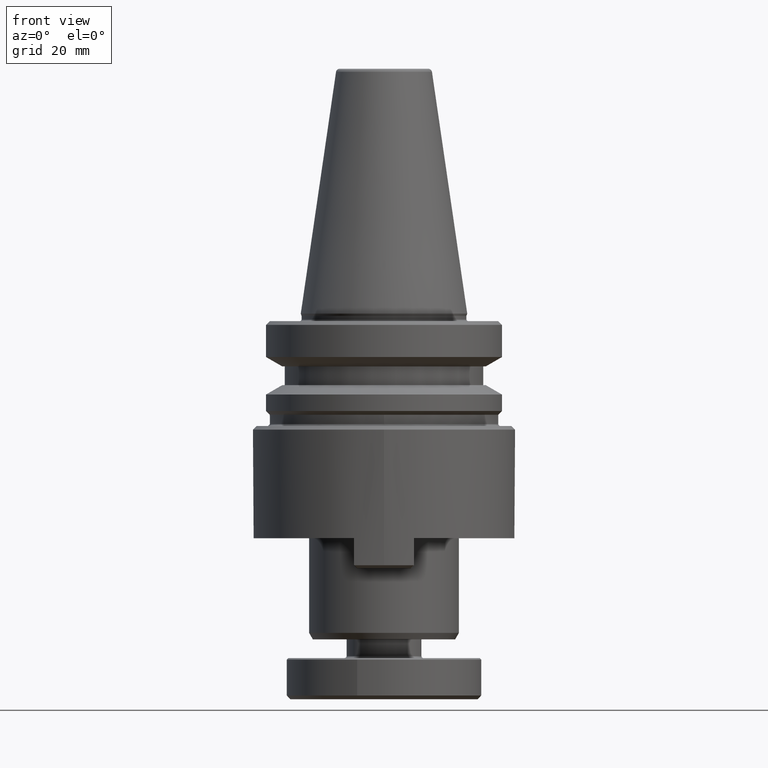
[diagram: clean part render]
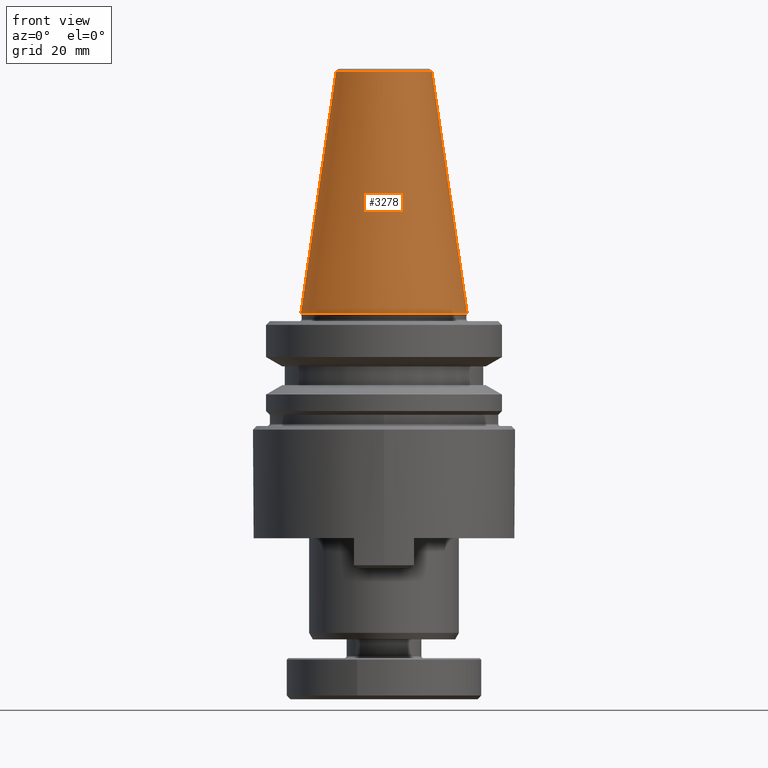
[diagram: same view with one face highlighted and labeled with its STEP entity id]
A machine part, front view. The second image highlights one B-rep face of the part: STEP entity #3278.
In plain terms, the highlighted conical surface has half-angle 8.297 deg.
Its self-contained STEP definition (entity closure, byte-faithful):
#114 = ORIENTED_EDGE ( 'NONE', *, *, #2803, .F. ) ;
#117 = VERTEX_POINT ( 'NONE', #1018 ) ;
#137 = DIRECTION ( 'NONE',  ( -0.0000000000000000000, -0.0000000000000000000, -1.000000000000000000 ) ) ;
#152 = CARTESIAN_POINT ( 'NONE',  ( 73.52171165756638500, 96.54903105188329000, 169.2395005851809900 ) ) ;
#158 = DIRECTION ( 'NONE',  ( -1.000000000000000000, 0.0000000000000000000, 0.0000000000000000000 ) ) ;
#186 = EDGE_CURVE ( 'NONE', #1254, #1128, #2591, .T. ) ;
#244 = AXIS2_PLACEMENT_3D ( 'NONE', #152, #137, #158 ) ;
#416 = LINE ( 'NONE', #1251, #426 ) ;
#426 = VECTOR ( 'NONE', #1274, 1000.000000000000200 ) ;
#534 = CARTESIAN_POINT ( 'NONE',  ( 95.74671165756409200, 96.54903105188329000, 104.6951923962935400 ) ) ;
#680 = CIRCLE ( 'NONE', #1811, 22.22499999999770600 ) ;
#707 = ORIENTED_EDGE ( 'NONE', *, *, #2667, .T. ) ;
#1018 = CARTESIAN_POINT ( 'NONE',  ( 60.70950958831647200, 96.54903105188329000, 169.2395005851809900 ) ) ;
#1035 = DIRECTION ( 'NONE',  ( -1.000000000000000000, 0.0000000000000000000, 0.0000000000000000000 ) ) ;
#1036 = DIRECTION ( 'NONE',  ( -0.0000000000000000000, -0.0000000000000000000, -1.000000000000000000 ) ) ;
#1044 = CARTESIAN_POINT ( 'NONE',  ( 73.52171165756638500, 96.54903105188329000, 104.6951923962935400 ) ) ;
#1128 = VERTEX_POINT ( 'NONE', #534 ) ;
#1150 = CARTESIAN_POINT ( 'NONE',  ( 86.33391372681629200, 96.54903105188329000, 169.2395005851809900 ) ) ;
#1206 = FACE_OUTER_BOUND ( 'NONE', #1333, .T. ) ;
#1244 = CONICAL_SURFACE ( 'NONE', #244, 12.81220206924993500, 0.1448138077624007100 ) ;
#1251 = CARTESIAN_POINT ( 'NONE',  ( 60.70950958831644300, 96.54903105188329000, 169.2395005851809900 ) ) ;
#1254 = VERTEX_POINT ( 'NONE', #1150 ) ;
#1274 = DIRECTION ( 'NONE',  ( -0.1443081888882595800, 0.0000000000000000000, -0.9895327920891708900 ) ) ;
#1333 = EDGE_LOOP ( 'NONE', ( #1571, #1746, #707, #114 ) ) ;
#1455 = VERTEX_POINT ( 'NONE', #2263 ) ;
#1571 = ORIENTED_EDGE ( 'NONE', *, *, #186, .F. ) ;
#1746 = ORIENTED_EDGE ( 'NONE', *, *, #2107, .T. ) ;
#1811 = AXIS2_PLACEMENT_3D ( 'NONE', #1044, #1036, #1035 ) ;
#2107 = EDGE_CURVE ( 'NONE', #1254, #117, #2415, .T. ) ;
#2162 = DIRECTION ( 'NONE',  ( 0.1443081888882595800, 1.767265616127587300E-017, -0.9895327920891708900 ) ) ;
#2180 = AXIS2_PLACEMENT_3D ( 'NONE', #2534, #2533, #2532 ) ;
#2263 = CARTESIAN_POINT ( 'NONE',  ( 51.29671165756867200, 96.54903105188329000, 104.6951923962935400 ) ) ;
#2299 = CARTESIAN_POINT ( 'NONE',  ( 86.33391372681632000, 96.54903105188329000, 169.2395005851809900 ) ) ;
#2415 = CIRCLE ( 'NONE', #2180, 12.81220206924993500 ) ;
#2532 = DIRECTION ( 'NONE',  ( -1.000000000000000000, 0.0000000000000000000, 0.0000000000000000000 ) ) ;
#2533 = DIRECTION ( 'NONE',  ( -0.0000000000000000000, -0.0000000000000000000, -1.000000000000000000 ) ) ;
#2534 = CARTESIAN_POINT ( 'NONE',  ( 73.52171165756638500, 96.54903105188329000, 169.2395005851809900 ) ) ;
#2591 = LINE ( 'NONE', #2299, #2594 ) ;
#2594 = VECTOR ( 'NONE', #2162, 1000.000000000000200 ) ;
#2667 = EDGE_CURVE ( 'NONE', #117, #1455, #416, .T. ) ;
#2803 = EDGE_CURVE ( 'NONE', #1128, #1455, #680, .T. ) ;
#3278 = ADVANCED_FACE ( 'NONE', ( #1206 ), #1244, .T. ) ;